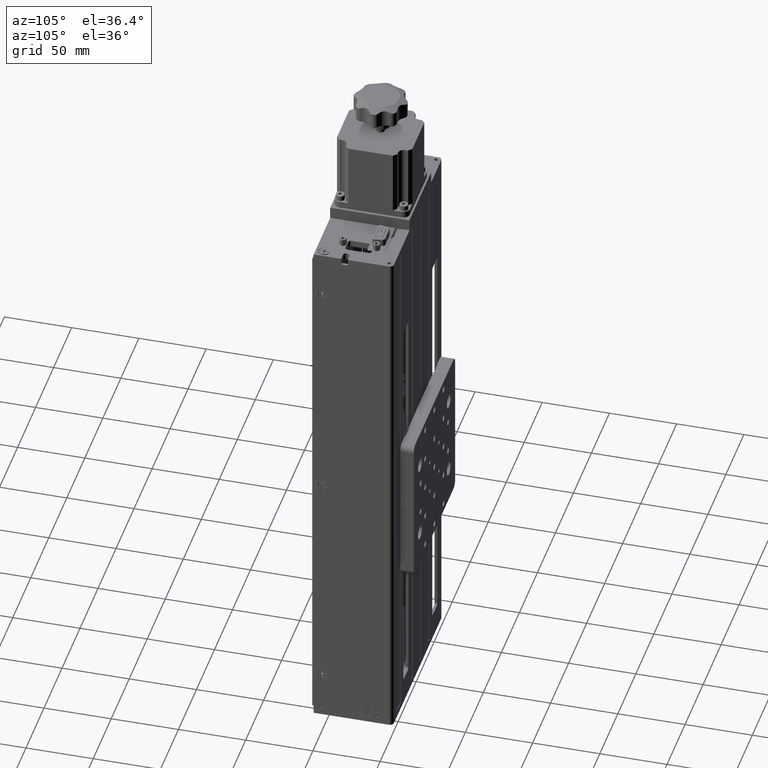
[diagram: clean part render]
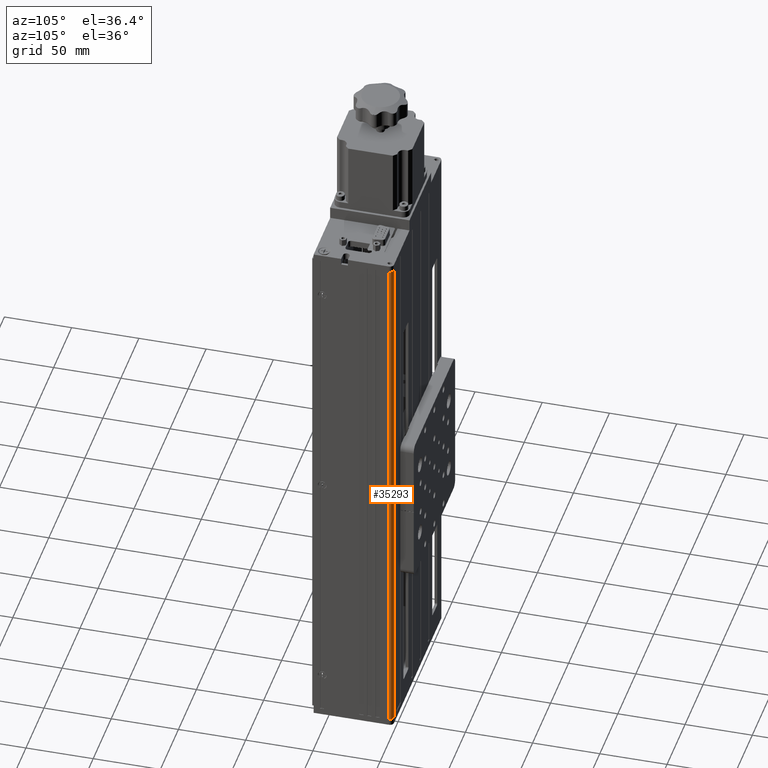
[diagram: same view with one face highlighted and labeled with its STEP entity id]
A machine part, auxiliary view. The second image highlights one B-rep face of the part: STEP entity #35293.
In plain terms, the highlighted cylindrical surface (edge-blend (fillet) strip) has radius 3 mm, axis along (-0, -0, -1).
Its self-contained STEP definition (entity closure, byte-faithful):
#178 = CARTESIAN_POINT ( 'NONE',  ( 62.71988329892534600, 47.39557601279239000, 136.7392992934879000 ) ) ;
#2046 = CARTESIAN_POINT ( 'NONE',  ( 62.71988329892534600, 47.39557601279239000, -262.2607007065120700 ) ) ;
#3619 = DIRECTION ( 'NONE',  ( 1.000000000000000000, 0.0000000000000000000, 0.0000000000000000000 ) ) ;
#4879 = DIRECTION ( 'NONE',  ( -1.000000000000000000, 0.0000000000000000000, 0.0000000000000000000 ) ) ;
#5481 = DIRECTION ( 'NONE',  ( 1.000000000000000000, 0.0000000000000000000, 0.0000000000000000000 ) ) ;
#6709 = AXIS2_PLACEMENT_3D ( 'NONE', #2046, #25844, #5481 ) ;
#7039 = EDGE_CURVE ( 'NONE', #22664, #7868, #24057, .T. ) ;
#7105 = EDGE_CURVE ( 'NONE', #7868, #19137, #42686, .T. ) ;
#7868 = VERTEX_POINT ( 'NONE', #23096 ) ;
#8135 = CARTESIAN_POINT ( 'NONE',  ( 62.71988329892534600, 47.39557601279239000, 136.7392992934879000 ) ) ;
#10884 = AXIS2_PLACEMENT_3D ( 'NONE', #8135, #28481, #4879 ) ;
#11565 = DIRECTION ( 'NONE',  ( -0.0000000000000000000, -0.0000000000000000000, -1.000000000000000000 ) ) ;
#13472 = VECTOR ( 'NONE', #23190, 1000.000000000000000 ) ;
#15010 = VECTOR ( 'NONE', #11565, 1000.000000000000000 ) ;
#16228 = EDGE_LOOP ( 'NONE', ( #41205, #20010, #19573, #29888 ) ) ;
#16351 = FACE_OUTER_BOUND ( 'NONE', #16228, .T. ) ;
#19137 = VERTEX_POINT ( 'NONE', #36469 ) ;
#19573 = ORIENTED_EDGE ( 'NONE', *, *, #22956, .F. ) ;
#20010 = ORIENTED_EDGE ( 'NONE', *, *, #20732, .F. ) ;
#20732 = EDGE_CURVE ( 'NONE', #43698, #19137, #31527, .T. ) ;
#22664 = VERTEX_POINT ( 'NONE', #32338 ) ;
#22956 = EDGE_CURVE ( 'NONE', #22664, #43698, #40134, .T. ) ;
#23096 = CARTESIAN_POINT ( 'NONE',  ( 65.71988329892535300, 47.39557601279239000, -262.2607007065120700 ) ) ;
#23190 = DIRECTION ( 'NONE',  ( -0.0000000000000000000, -0.0000000000000000000, -1.000000000000000000 ) ) ;
#23965 = DIRECTION ( 'NONE',  ( 0.0000000000000000000, 0.0000000000000000000, 1.000000000000000000 ) ) ;
#24057 = LINE ( 'NONE', #38752, #15010 ) ;
#25844 = DIRECTION ( 'NONE',  ( 0.0000000000000000000, 0.0000000000000000000, 1.000000000000000000 ) ) ;
#28481 = DIRECTION ( 'NONE',  ( -0.0000000000000000000, -0.0000000000000000000, -1.000000000000000000 ) ) ;
#29082 = CYLINDRICAL_SURFACE ( 'NONE', #10884, 3.000000000000002700 ) ;
#29888 = ORIENTED_EDGE ( 'NONE', *, *, #7039, .T. ) ;
#31527 = LINE ( 'NONE', #43434, #13472 ) ;
#32338 = CARTESIAN_POINT ( 'NONE',  ( 65.71988329892535300, 47.39557601279239000, 136.7392992934879000 ) ) ;
#35293 = ADVANCED_FACE ( 'NONE', ( #16351 ), #29082, .T. ) ;
#36469 = CARTESIAN_POINT ( 'NONE',  ( 62.71988329892534600, 50.39557601279239000, -262.2607007065120700 ) ) ;
#38752 = CARTESIAN_POINT ( 'NONE',  ( 65.71988329892535300, 47.39557601279239000, 136.7392992934879000 ) ) ;
#39006 = CARTESIAN_POINT ( 'NONE',  ( 62.71988329892534600, 50.39557601279239000, 136.7392992934879000 ) ) ;
#40134 = CIRCLE ( 'NONE', #40388, 3.000000000000002700 ) ;
#40388 = AXIS2_PLACEMENT_3D ( 'NONE', #178, #23965, #3619 ) ;
#41205 = ORIENTED_EDGE ( 'NONE', *, *, #7105, .T. ) ;
#42686 = CIRCLE ( 'NONE', #6709, 3.000000000000002700 ) ;
#43434 = CARTESIAN_POINT ( 'NONE',  ( 62.71988329892534600, 50.39557601279239000, 136.7392992934879000 ) ) ;
#43698 = VERTEX_POINT ( 'NONE', #39006 ) ;